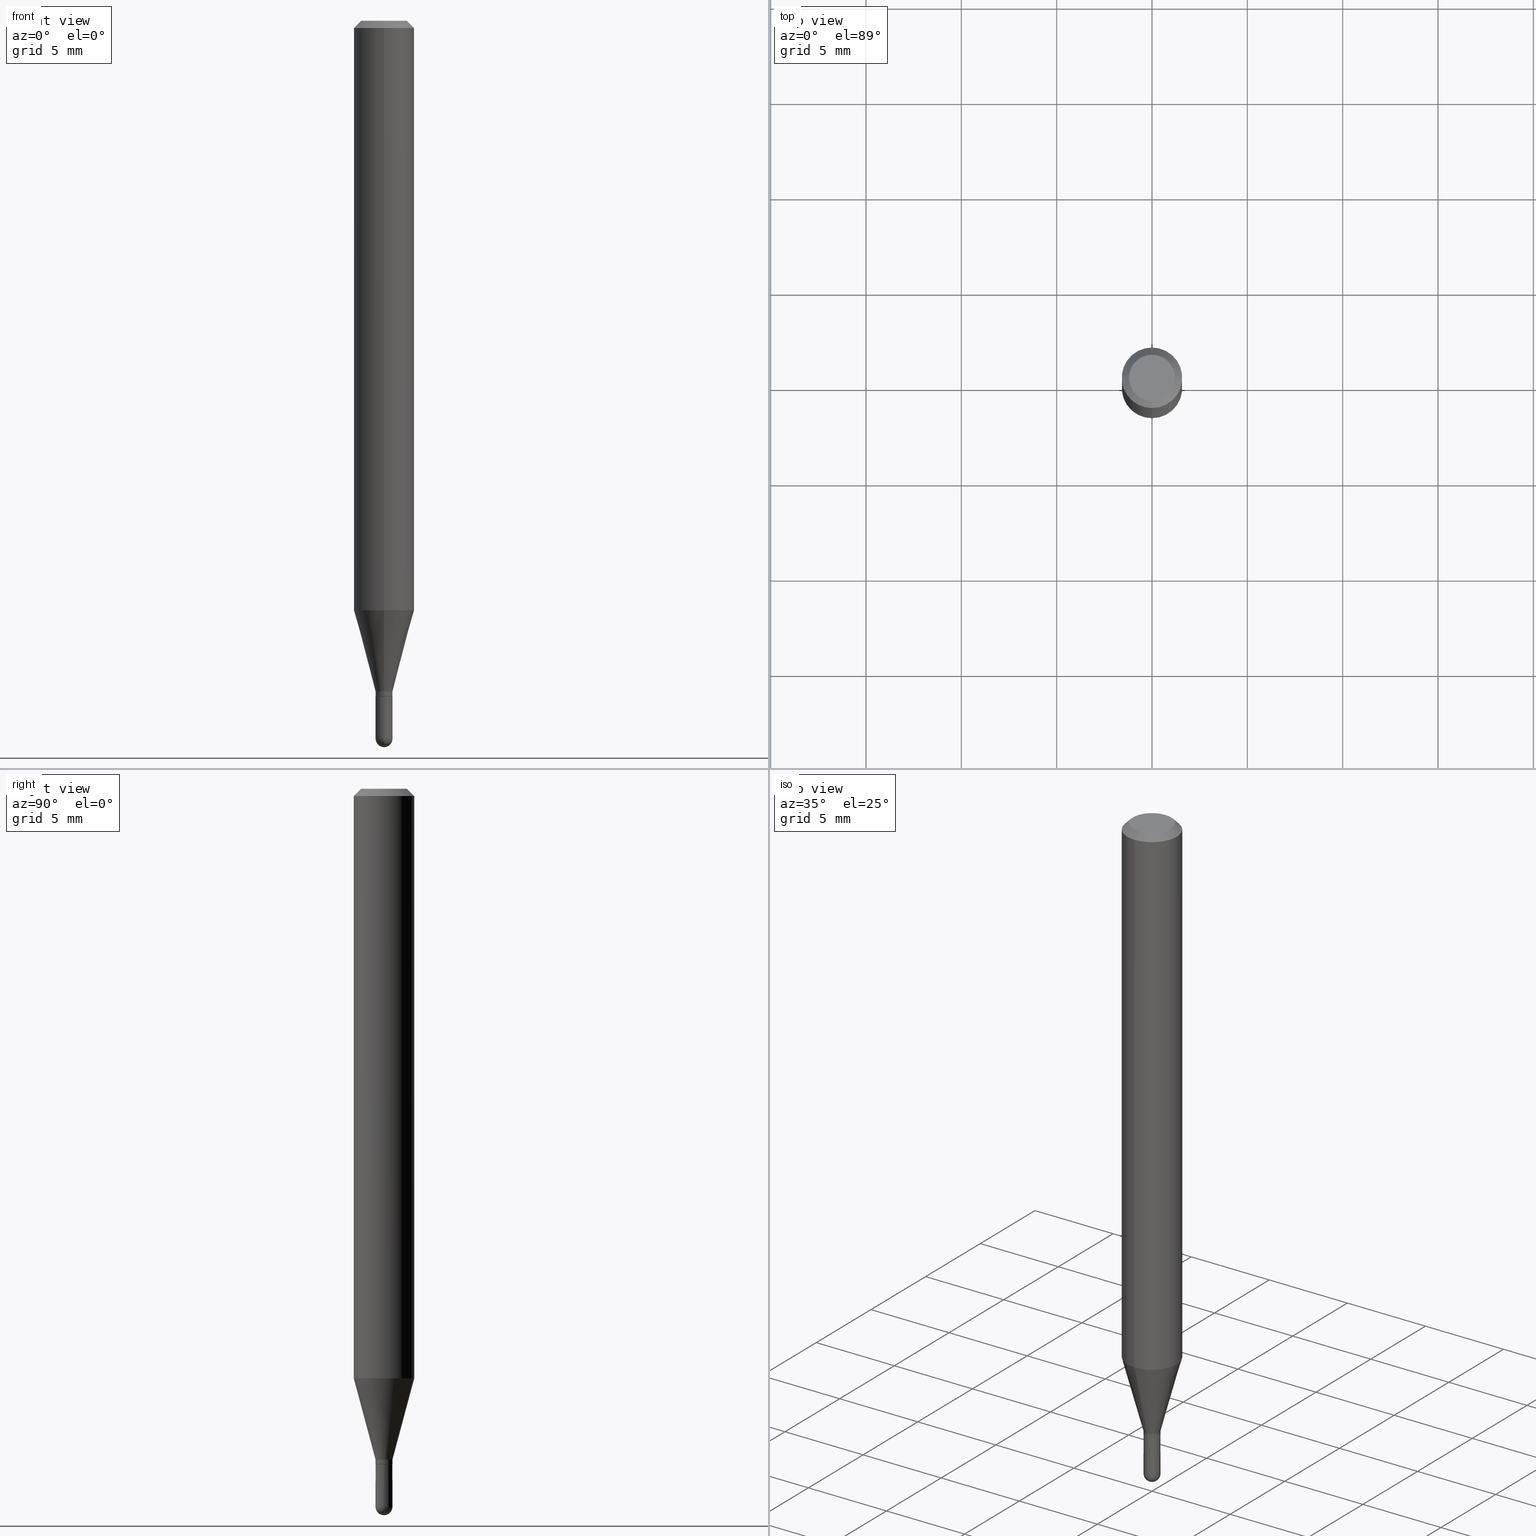
[diagram: canonical four-view strip — front | top / right | iso, engineering-drawing reading convention]
A machine part, canonical four-view strip (front | top / right | iso — engineering-drawing reading convention). The complete STEP part file that produces these views, byte-faithful:
ISO-10303-21;
HEADER;
FILE_DESCRIPTION (( 'STEP AP203' ),
    '1' );
FILE_NAME ('03133.STEP',
    '2024-03-08T18:18:30',
    ( '' ),
    ( '' ),
    'SwSTEP 2.0',
    'SolidWorks 2023',
    '' );
FILE_SCHEMA (( 'CONFIG_CONTROL_DESIGN' ));
ENDSEC;

DATA;
#1 = DIRECTION ( 'NONE',  ( 5.024295867788190974E-15, 0.7071067811865681119, 0.7071067811865270336 ) ) ;
#2 = DIRECTION ( 'NONE',  ( 2.445470767023834955E-29, -3.491478530810524954E-15, -1.000000000000000000 ) ) ;
#3 = AXIS2_PLACEMENT_3D ( 'NONE', #217, #303, #488 ) ;
#4 = LINE ( 'NONE', #283, #213 ) ;
#5 = DIRECTION ( 'NONE',  ( 1.000000000000000000, -7.105427357601001070E-15, 4.926315508542082329E-29 ) ) ;
#6 = EDGE_LOOP ( 'NONE', ( #229, #171, #78, #389, #225 ) ) ;
#7 = DIRECTION ( 'NONE',  ( -2.445470767023835515E-29, 3.491478530810524954E-15, 1.000000000000000000 ) ) ;
#8 = ADVANCED_FACE ( 'NONE', ( #65 ), #86, .T. ) ;
#9 = CARTESIAN_POINT ( 'NONE',  ( -0.01750000000000000167, -4.899023797502559247E-15, -1.395000000000000018 ) ) ;
#10 = DIRECTION ( 'NONE',  ( 1.000000000000000000, -6.982962677686265922E-15, 4.883557194083112901E-29 ) ) ;
#11 = DIRECTION ( 'NONE',  ( -2.445470767023835515E-29, 3.491478530810524954E-15, 1.000000000000000000 ) ) ;
#12 = APPROVAL_DATE_TIME ( #56, #386 ) ;
#13 = AXIS2_PLACEMENT_3D ( 'NONE', #139, #341, #422 ) ;
#14 = CIRCLE ( 'NONE', #177, 0.01750000000000000167 ) ;
#15 = APPROVAL_STATUS ( 'not_yet_approved' ) ;
#16 = ADVANCED_FACE ( 'NONE', ( #413 ), #321, .T. ) ;
#17 = APPROVAL_ROLE ( '' ) ;
#18 = EDGE_LOOP ( 'NONE', ( #401, #287, #233, #82 ) ) ;
#19 = DIRECTION ( 'NONE',  ( -2.445468806185136597E-29, 3.491481338843145583E-15, 1.000000000000000000 ) ) ;
#20 = PERSON_AND_ORGANIZATION ( #118, #427 ) ;
#21 = DIRECTION ( 'NONE',  ( -6.982962677686265922E-15, -1.000000000000000000, 0.000000000000000000 ) ) ;
#22 = ORIENTED_EDGE ( 'NONE', *, *, #240, .F. ) ;
#23 = COORDINATED_UNIVERSAL_TIME_OFFSET ( 5, 0, .BEHIND. ) ;
#24 = DIRECTION ( 'NONE',  ( -1.000000000000000000, 6.982962677686265922E-15, -4.876176775795935793E-29 ) ) ;
#25 = ORIENTED_EDGE ( 'NONE', *, *, #52, .F. ) ;
#26 = CARTESIAN_POINT ( 'NONE',  ( 3.668206150535694734E-31, -5.237217796215704281E-17, -0.01499999999999976179 ) ) ;
#27 = ORIENTED_EDGE ( 'NONE', *, *, #466, .F. ) ;
#28 = DIRECTION ( 'NONE',  ( -2.445470767023835515E-29, 3.491478530810524954E-15, 1.000000000000000000 ) ) ;
#29 = AXIS2_PLACEMENT_3D ( 'NONE', #399, #11, #494 ) ;
#30 = AXIS2_PLACEMENT_3D ( 'NONE', #117, #284, #286 ) ;
#31 = EDGE_CURVE ( 'NONE', #374, #159, #192, .T. ) ;
#32 = EDGE_CURVE ( 'NONE', #159, #374, #44, .T. ) ;
#33 = CONICAL_SURFACE ( 'NONE', #460, 0.01700000000000000122, 0.7853981633974739252 ) ;
#34 = DIRECTION ( 'NONE',  ( -2.445470767023835515E-29, 3.491478530810524954E-15, 1.000000000000000000 ) ) ;
#35 = CIRCLE ( 'NONE', #467, 0.01749999999999987330 ) ;
#36 = DIRECTION ( 'NONE',  ( 1.000000000000000000, -6.982962677686248567E-15, 0.000000000000000000 ) ) ;
#37 = DIRECTION ( 'NONE',  ( -2.445470767023835515E-29, 3.491478530810524954E-15, 1.000000000000000000 ) ) ;
#38 = CARTESIAN_POINT ( 'NONE',  ( -4.364351673553916201E-16, -0.06250000000000000000, 2.182174081756577850E-16 ) ) ;
#39 = ORIENTED_EDGE ( 'NONE', *, *, #116, .F. ) ;
#40 = DIRECTION ( 'NONE',  ( -2.445468806185136597E-29, 3.491481338843145583E-15, 1.000000000000000000 ) ) ;
#41 = CYLINDRICAL_SURFACE ( 'NONE', #400, 0.01749999999999992534 ) ;
#42 = CARTESIAN_POINT ( 'NONE',  ( 3.411428984628265351E-29, -4.870616467686188228E-15, -1.395000000000000018 ) ) ;
#43 = DIRECTION ( 'NONE',  ( -2.445470767023835515E-29, 3.491478530810524954E-15, 1.000000000000000000 ) ) ;
#44 = CIRCLE ( 'NONE', #144, 0.06250000000000000000 ) ;
#45 = ORIENTED_EDGE ( 'NONE', *, *, #455, .T. ) ;
#46 = CARTESIAN_POINT ( 'NONE',  ( 2.976279060534930042E-29, -4.249330877999140897E-15, -1.217057713659400742 ) ) ;
#47 = CC_DESIGN_APPROVAL ( #100, ( #178 ) ) ;
#48 = EDGE_CURVE ( 'NONE', #273, #83, #58, .T. ) ;
#49 = ORIENTED_EDGE ( 'NONE', *, *, #156, .F. ) ;
#50 = ORIENTED_EDGE ( 'NONE', *, *, #334, .F. ) ;
#51 = ORIENTED_EDGE ( 'NONE', *, *, #480, .F. ) ;
#52 = EDGE_CURVE ( 'NONE', #412, #210, #445, .T. ) ;
#53 = COORDINATED_UNIVERSAL_TIME_OFFSET ( 5, 0, .BEHIND. ) ;
#54 = CYLINDRICAL_SURFACE ( 'NONE', #434, 0.06250000000000000000 ) ;
#55 = EDGE_CURVE ( 'NONE', #345, #315, #198, .T. ) ;
#56 = DATE_AND_TIME ( #365, #381 ) ;
#57 = ORIENTED_EDGE ( 'NONE', *, *, #156, .T. ) ;
#58 = CIRCLE ( 'NONE', #123, 0.01750000000000000167 ) ;
#59 = CARTESIAN_POINT ( 'NONE',  ( 3.623910964163401181E-29, -5.178264216733472029E-15, -1.482500000000000151 ) ) ;
#60 = AXIS2_PLACEMENT_3D ( 'NONE', #250, #324, #328 ) ;
#61 = APPROVAL_ROLE ( '' ) ;
#62 = SECURITY_CLASSIFICATION_LEVEL ( 'unclassified' ) ;
#63 = DIRECTION ( 'NONE',  ( 1.000000000000000000, -6.982962677686265922E-15, 4.883557194083112901E-29 ) ) ;
#64 = VERTEX_POINT ( 'NONE', #420 ) ;
#65 = FACE_OUTER_BOUND ( 'NONE', #261, .T. ) ;
#66 = AXIS2_PLACEMENT_3D ( 'NONE', #196, #246, #113 ) ;
#67 = ORIENTED_EDGE ( 'NONE', *, *, #275, .F. ) ;
#68 = EDGE_CURVE ( 'NONE', #296, #253, #426, .T. ) ;
#69 = DIRECTION ( 'NONE',  ( 2.438088387897960049E-29, -3.491481338843145188E-15, -1.000000000000000000 ) ) ;
#70 = CC_DESIGN_PERSON_AND_ORGANIZATION_ASSIGNMENT ( #336, #255, ( #373 ) ) ;
#71 = EDGE_LOOP ( 'NONE', ( #248, #504, #340, #107 ) ) ;
#72 = CYLINDRICAL_SURFACE ( 'NONE', #368, 0.01749999999999992534 ) ;
#73 = ADVANCED_FACE ( 'NONE', ( #452 ), #457, .T. ) ;
#74 = LINE ( 'NONE', #238, #369 ) ;
#75 = AXIS2_PLACEMENT_3D ( 'NONE', #423, #10, #158 ) ;
#76 = CARTESIAN_POINT ( 'NONE',  ( -1.222018468594729558E-16, -0.01750000000000511563, -1.482500000000000373 ) ) ;
#77 = AXIS2_PLACEMENT_3D ( 'NONE', #484, #19, #407 ) ;
#78 = ORIENTED_EDGE ( 'NONE', *, *, #278, .T. ) ;
#79 = CARTESIAN_POINT ( 'NONE',  ( -5.856621485467640088E-45, 8.361689886188936575E-31, 2.394885093063374429E-16 ) ) ;
#80 = LINE ( 'NONE', #38, #281 ) ;
#81 = ADVANCED_FACE ( 'NONE', ( #449 ), #54, .T. ) ;
#82 = ORIENTED_EDGE ( 'NONE', *, *, #459, .F. ) ;
#83 = VERTEX_POINT ( 'NONE', #222 ) ;
#84 = DIRECTION ( 'NONE',  ( 4.937700262164548042E-15, 0.7071067811865451302, -0.7071067811865499042 ) ) ;
#85 = ADVANCED_FACE ( 'NONE', ( #182 ), #343, .T. ) ;
#86 = CONICAL_SURFACE ( 'NONE', #145, 0.01749999999999992534, 0.2617993877991502960 ) ;
#87 = EDGE_LOOP ( 'NONE', ( #67, #187 ) ) ;
#88 = CARTESIAN_POINT ( 'NONE',  ( 1.243449787580533389E-16, 0.01749999999999475933, -1.482500000000000373 ) ) ;
#89 = CIRCLE ( 'NONE', #509, 0.01749999999999992534 ) ;
#90 = CALENDAR_DATE ( 2024, 8, 3 ) ;
#91 = ORIENTED_EDGE ( 'NONE', *, *, #55, .T. ) ;
#92 = EDGE_CURVE ( 'NONE', #315, #210, #487, .T. ) ;
#93 = LINE ( 'NONE', #288, #194 ) ;
#94 = PERSON_AND_ORGANIZATION ( #118, #427 ) ;
#95 = ORIENTED_EDGE ( 'NONE', *, *, #164, .T. ) ;
#96 = COORDINATED_UNIVERSAL_TIME_OFFSET ( 5, 0, .BEHIND. ) ;
#97 = ORIENTED_EDGE ( 'NONE', *, *, #278, .F. ) ;
#98 = DIRECTION ( 'NONE',  ( -2.445470767023835515E-29, 3.491478530810524954E-15, 1.000000000000000000 ) ) ;
#99 = VERTEX_POINT ( 'NONE', #297 ) ;
#100 = APPROVAL ( #490, 'UNSPECIFIED' ) ;
#101 = CIRCLE ( 'NONE', #392, 0.01749999999999992534 ) ;
#102 = DIRECTION ( 'NONE',  ( -2.445470767023835515E-29, 3.491478530810524954E-15, 1.000000000000000000 ) ) ;
#103 = CC_DESIGN_PERSON_AND_ORGANIZATION_ASSIGNMENT ( #264, #408, ( #178 ) ) ;
#104 = ORIENTED_EDGE ( 'NONE', *, *, #197, .F. ) ;
#105 = DIRECTION ( 'NONE',  ( -2.445470767023835515E-29, 3.491478530810524954E-15, 1.000000000000000000 ) ) ;
#106 = AXIS2_PLACEMENT_3D ( 'NONE', #510, #122, #472 ) ;
#107 = ORIENTED_EDGE ( 'NONE', *, *, #305, .F. ) ;
#108 = MANIFOLD_SOLID_BREP ( 'Body-Move/Copy2[2]', #473 ) ;
#109 = FACE_OUTER_BOUND ( 'NONE', #375, .T. ) ;
#110 = MANIFOLD_SOLID_BREP ( 'Body-Move/Copy2[1]', #259 ) ;
#111 = LINE ( 'NONE', #355, #358 ) ;
#112 = VECTOR ( 'NONE', #136, 39.37007874015748143 ) ;
#113 = DIRECTION ( 'NONE',  ( -6.982962677686265922E-15, -1.000000000000000000, 3.491478530810524954E-15 ) ) ;
#114 = AXIS2_PLACEMENT_3D ( 'NONE', #42, #40, #153 ) ;
#115 = DIRECTION ( 'NONE',  ( -2.445468806185136877E-29, 3.491481338843145188E-15, 1.000000000000000000 ) ) ;
#116 = EDGE_CURVE ( 'NONE', #253, #159, #175, .T. ) ;
#117 = CARTESIAN_POINT ( 'NONE',  ( 0.000000000000000000, 0.000000000000000000, 0.000000000000000000 ) ) ;
#118 = PERSON ( 'UNSPECIFIED', 'UNSPECIFIED', 'UNSPECIFIED', ('UNSPECIFIED'), ('UNSPECIFIED'), ('UNSPECIFIED') ) ;
#119 = CARTESIAN_POINT ( 'NONE',  ( -1.187103655206324139E-16, -0.01700000000000487232, -1.395000000000000018 ) ) ;
#120 = DIRECTION ( 'NONE',  ( -6.982962677686266711E-15, -1.000000000000000000, 3.491478530810524560E-15 ) ) ;
#121 = VERTEX_POINT ( 'NONE', #425 ) ;
#122 = DIRECTION ( 'NONE',  ( -2.445470767023835515E-29, 3.491478530810524954E-15, 1.000000000000000000 ) ) ;
#123 = AXIS2_PLACEMENT_3D ( 'NONE', #186, #499, #364 ) ;
#124 = AXIS2_PLACEMENT_3D ( 'NONE', #362, #2, #352 ) ;
#125 = ORIENTED_EDGE ( 'NONE', *, *, #466, .T. ) ;
#126 = EDGE_CURVE ( 'NONE', #468, #345, #379, .T. ) ;
#127 = LOCAL_TIME ( 13, 18, 30.00000000000000000, #497 ) ;
#128 = EDGE_LOOP ( 'NONE', ( #453, #377, #478, #214 ) ) ;
#129 = DATE_TIME_ROLE ( 'creation_date' ) ;
#130 = ORIENTED_EDGE ( 'NONE', *, *, #378, .T. ) ;
#131 =( NAMED_UNIT ( * ) SI_UNIT ( $, .STERADIAN. ) SOLID_ANGLE_UNIT ( ) );
#132 = EDGE_LOOP ( 'NONE', ( #451, #125 ) ) ;
#133 = DIRECTION ( 'NONE',  ( -6.982962677686265922E-15, -1.000000000000000000, 3.483106191921935554E-15 ) ) ;
#134 = CIRCLE ( 'NONE', #461, 0.01749999999999992534 ) ;
#135 = PRODUCT_DEFINITION_FORMATION_WITH_SPECIFIED_SOURCE ( 'ANY', '', #373, .NOT_KNOWN. ) ;
#136 = DIRECTION ( 'NONE',  ( -4.851104656540964275E-15, -0.7071067811865500152, -0.7071067811865450192 ) ) ;
#137 = CARTESIAN_POINT ( 'NONE',  ( 4.440892098500920998E-16, 0.06249999999999572564, -1.217057713659400964 ) ) ;
#138 = DIRECTION ( 'NONE',  ( -2.445470767023835515E-29, 3.491478530810524954E-15, 1.000000000000000000 ) ) ;
#139 = CARTESIAN_POINT ( 'NONE',  ( 3.411431719998250499E-29, -4.870612550480682147E-15, -1.395000000000000018 ) ) ;
#140 = ADVANCED_FACE ( 'NONE', ( #431 ), #33, .T. ) ;
#141 = DIRECTION ( 'NONE',  ( -6.982962677686265133E-15, -1.000000000000000000, 3.491478530810524954E-15 ) ) ;
#142 = AXIS2_PLACEMENT_3D ( 'NONE', #268, #306, #421 ) ;
#143 = CARTESIAN_POINT ( 'NONE',  ( 3.386977012328011606E-29, -4.835697765172575624E-15, -1.384999999999999787 ) ) ;
#144 = AXIS2_PLACEMENT_3D ( 'NONE', #26, #183, #348 ) ;
#145 = AXIS2_PLACEMENT_3D ( 'NONE', #226, #496, #262 ) ;
#146 = CIRCLE ( 'NONE', #239, 0.01700000000000000122 ) ;
#147 = ADVANCED_FACE ( 'NONE', ( #189 ), #72, .T. ) ;
#148 = APPROVAL_PERSON_ORGANIZATION ( #20, #230, #220 ) ;
#149 = LENGTH_MEASURE_WITH_UNIT ( LENGTH_MEASURE( 0.02539999999999999897 ), #205 );
#150 = CC_DESIGN_DATE_AND_TIME_ASSIGNMENT ( #347, #129, ( #178 ) ) ;
#151 = DIRECTION ( 'NONE',  ( 1.000000000000000000, -6.982962677686248567E-15, 0.000000000000000000 ) ) ;
#152 = ADVANCED_FACE ( 'NONE', ( #385 ), #500, .T. ) ;
#153 = DIRECTION ( 'NONE',  ( 1.000000000000000000, -6.982962677686248567E-15, 0.000000000000000000 ) ) ;
#154 = CARTESIAN_POINT ( 'NONE',  ( 3.623910964163401181E-29, -5.178264216733472029E-15, -1.482500000000000151 ) ) ;
#155 = CIRCLE ( 'NONE', #77, 0.01750000000000000167 ) ;
#156 = EDGE_CURVE ( 'NONE', #121, #273, #232, .T. ) ;
#157 = LINE ( 'NONE', #393, #351 ) ;
#158 = DIRECTION ( 'NONE',  ( -6.982962677686265922E-15, -1.000000000000000000, 0.000000000000000000 ) ) ;
#159 = VERTEX_POINT ( 'NONE', #367 ) ;
#160 = ORIENTED_EDGE ( 'NONE', *, *, #313, .F. ) ;
#161 = DIRECTION ( 'NONE',  ( -6.982962677686265133E-15, -1.000000000000000000, 0.000000000000000000 ) ) ;
#162 = ORIENTED_EDGE ( 'NONE', *, *, #275, .T. ) ;
#163 = COORDINATED_UNIVERSAL_TIME_OFFSET ( 5, 0, .BEHIND. ) ;
#164 = EDGE_CURVE ( 'NONE', #99, #345, #111, .T. ) ;
#165 = VECTOR ( 'NONE', #309, 39.37007874015748143 ) ;
#166 = CIRCLE ( 'NONE', #331, 0.04749999999999999362 ) ;
#167 = DIRECTION ( 'NONE',  ( -2.445468806185136877E-29, 3.491481338843145188E-15, 1.000000000000000000 ) ) ;
#168 = PLANE ( 'NONE',  #66 ) ;
#169 = DIRECTION ( 'NONE',  ( 6.982962677686265922E-15, 1.000000000000000000, -3.483106191921935554E-15 ) ) ;
#170 = CALENDAR_DATE ( 2024, 8, 3 ) ;
#171 = ORIENTED_EDGE ( 'NONE', *, *, #416, .T. ) ;
#172 = EDGE_CURVE ( 'NONE', #428, #257, #483, .T. ) ;
#173 = CALENDAR_DATE ( 2024, 8, 3 ) ;
#174 = ORIENTED_EDGE ( 'NONE', *, *, #305, .T. ) ;
#175 = LINE ( 'NONE', #346, #112 ) ;
#176 = ORIENTED_EDGE ( 'NONE', *, *, #92, .F. ) ;
#177 = AXIS2_PLACEMENT_3D ( 'NONE', #282, #432, #151 ) ;
#178 = PRODUCT_DEFINITION ( 'UNKNOWN', '', #135, #242 ) ;
#179 = CALENDAR_DATE ( 2024, 8, 3 ) ;
#180 = FACE_OUTER_BOUND ( 'NONE', #6, .T. ) ;
#181 = DIMENSIONAL_EXPONENTS ( 1.000000000000000000, 0.000000000000000000, 0.000000000000000000, 0.000000000000000000, 0.000000000000000000, 0.000000000000000000, 0.000000000000000000 ) ;
#182 = FACE_OUTER_BOUND ( 'NONE', #471, .T. ) ;
#183 = DIRECTION ( 'NONE',  ( -2.445470767023835515E-29, 3.491478530810524954E-15, 1.000000000000000000 ) ) ;
#184 = ADVANCED_FACE ( 'NONE', ( #320 ), #204, .T. ) ;
#185 = VERTEX_POINT ( 'NONE', #470 ) ;
#186 = CARTESIAN_POINT ( 'NONE',  ( 3.625407505169465812E-29, -5.176121084834964763E-15, -1.482500000000000373 ) ) ;
#187 = ORIENTED_EDGE ( 'NONE', *, *, #511, .F. ) ;
#188 = CIRCLE ( 'NONE', #269, 0.06250000000000000000 ) ;
#189 = FACE_OUTER_BOUND ( 'NONE', #71, .T. ) ;
#190 = CARTESIAN_POINT ( 'NONE',  ( 3.665958397768608510E-29, -5.240436706112481047E-15, -1.499999999999999778 ) ) ;
#191 = CARTESIAN_POINT ( 'NONE',  ( 3.386977012328011606E-29, -4.835697765172575624E-15, -1.384999999999999787 ) ) ;
#192 = CIRCLE ( 'NONE', #249, 0.06250000000000000000 ) ;
#193 = EDGE_CURVE ( 'NONE', #83, #428, #202, .T. ) ;
#194 = VECTOR ( 'NONE', #167, 39.37007874015748143 ) ;
#195 = LINE ( 'NONE', #465, #508 ) ;
#196 = CARTESIAN_POINT ( 'NONE',  ( 3.411431719998250499E-29, -4.870612550480682147E-15, -1.395000000000000018 ) ) ;
#197 = EDGE_CURVE ( 'NONE', #210, #374, #4, .T. ) ;
#198 = LINE ( 'NONE', #237, #165 ) ;
#199 = FACE_OUTER_BOUND ( 'NONE', #87, .T. ) ;
#200 = DIRECTION ( 'NONE',  ( -2.445470767023835515E-29, 3.491478530810524954E-15, 1.000000000000000000 ) ) ;
#201 = ADVANCED_FACE ( 'NONE', ( #245 ), #396, .F. ) ;
#202 = LINE ( 'NONE', #280, #227 ) ;
#203 = DIRECTION ( 'NONE',  ( -1.807323732225330534E-15, -0.2588190451025182415, 0.9659258262890689783 ) ) ;
#204 = CONICAL_SURFACE ( 'NONE', #436, 0.06250000000000000000, 0.7853981633974483900 ) ;
#205 =( LENGTH_UNIT ( ) NAMED_UNIT ( * ) SI_UNIT ( $, .METRE. ) );
#206 = ORIENTED_EDGE ( 'NONE', *, *, #416, .F. ) ;
#207 = CARTESIAN_POINT ( 'NONE',  ( 3.411431719998250499E-29, -4.870612550480682147E-15, -1.395000000000000018 ) ) ;
#208 = DATE_AND_TIME ( #173, #215 ) ;
#209 = ORIENTED_EDGE ( 'NONE', *, *, #31, .F. ) ;
#210 = VERTEX_POINT ( 'NONE', #137 ) ;
#211 = APPROVAL_DATE_TIME ( #339, #100 ) ;
#212 = VECTOR ( 'NONE', #293, 39.37007874015748143 ) ;
#213 = VECTOR ( 'NONE', #438, 39.37007874015748143 ) ;
#214 = ORIENTED_EDGE ( 'NONE', *, *, #228, .F. ) ;
#215 = LOCAL_TIME ( 13, 18, 30.00000000000000000, #53 ) ;
#216 = CARTESIAN_POINT ( 'NONE',  ( 1.243449787580508491E-16, 0.01749999999999508893, -1.384999999999999787 ) ) ;
#217 = CARTESIAN_POINT ( 'NONE',  ( 0.000000000000000000, 0.000000000000000000, 0.000000000000000000 ) ) ;
#218 = ADVANCED_FACE ( 'NONE', ( #180 ), #458, .T. ) ;
#219 = ORIENTED_EDGE ( 'NONE', *, *, #378, .F. ) ;
#220 = APPROVAL_ROLE ( '' ) ;
#221 = CARTESIAN_POINT ( 'NONE',  ( 0.01750000000000000167, -4.992818314545698211E-15, -1.395000000000000018 ) ) ;
#222 = CARTESIAN_POINT ( 'NONE',  ( -0.01750000000000000167, -4.899023797502559247E-15, -1.482500000000000373 ) ) ;
#223 = APPLICATION_PROTOCOL_DEFINITION ( 'international standard', 'config_control_design', 1994, #424 ) ;
#224 = CIRCLE ( 'NONE', #344, 0.01750000000000000167 ) ;
#225 = ORIENTED_EDGE ( 'NONE', *, *, #172, .F. ) ;
#226 = CARTESIAN_POINT ( 'NONE',  ( 3.386977012328011606E-29, -4.835697765172575624E-15, -1.384999999999999787 ) ) ;
#227 = VECTOR ( 'NONE', #115, 39.37007874015748143 ) ;
#228 = EDGE_CURVE ( 'NONE', #345, #468, #89, .T. ) ;
#229 = ORIENTED_EDGE ( 'NONE', *, *, #193, .F. ) ;
#230 = APPROVAL ( #411, 'UNSPECIFIED' ) ;
#231 = DIRECTION ( 'NONE',  ( -2.445470767023835515E-29, 3.491478530810524954E-15, 1.000000000000000000 ) ) ;
#232 = CIRCLE ( 'NONE', #300, 0.01750000000000000167 ) ;
#233 = ORIENTED_EDGE ( 'NONE', *, *, #32, .F. ) ;
#234 = DIRECTION ( 'NONE',  ( -6.982962677686265133E-15, -1.000000000000000000, 0.000000000000000000 ) ) ;
#235 = CARTESIAN_POINT ( 'NONE',  ( 1.243449787580506765E-16, 0.01749999999999499872, -1.394500000000000073 ) ) ;
#236 = ORIENTED_EDGE ( 'NONE', *, *, #48, .F. ) ;
#237 = CARTESIAN_POINT ( 'NONE',  ( 1.243449787580169774E-16, 0.01749999999999992534, -6.110087428918392638E-17 ) ) ;
#238 = CARTESIAN_POINT ( 'NONE',  ( -1.222018468594752731E-16, -0.01750000000000476175, -1.384999999999999787 ) ) ;
#239 = AXIS2_PLACEMENT_3D ( 'NONE', #207, #37, #316 ) ;
#240 = EDGE_CURVE ( 'NONE', #121, #257, #93, .T. ) ;
#241 = DIRECTION ( 'NONE',  ( -2.445470767023835515E-29, 3.491478530810524954E-15, 1.000000000000000000 ) ) ;
#242 = DESIGN_CONTEXT ( 'detailed design', #424, 'design' ) ;
#243 = CARTESIAN_POINT ( 'NONE',  ( 3.668206150535694734E-31, -5.237217796215704281E-17, -0.01499999999999976179 ) ) ;
#244 = CARTESIAN_POINT ( 'NONE',  ( -1.222018468594754457E-16, -0.01750000000000485542, -1.394500000000000073 ) ) ;
#245 = FACE_OUTER_BOUND ( 'NONE', #271, .T. ) ;
#246 = DIRECTION ( 'NONE',  ( -2.445470767023834955E-29, 3.491478530810524954E-15, 1.000000000000000000 ) ) ;
#247 = EDGE_LOOP ( 'NONE', ( #27, #329, #291, #219 ) ) ;
#248 = ORIENTED_EDGE ( 'NONE', *, *, #55, .F. ) ;
#249 = AXIS2_PLACEMENT_3D ( 'NONE', #492, #28, #133 ) ;
#250 = CARTESIAN_POINT ( 'NONE',  ( 0.000000000000000000, 0.000000000000000000, 0.000000000000000000 ) ) ;
#251 = AXIS2_PLACEMENT_3D ( 'NONE', #318, #437, #161 ) ;
#252 = ORIENTED_EDGE ( 'NONE', *, *, #294, .F. ) ;
#253 = VERTEX_POINT ( 'NONE', #270 ) ;
#254 = DIRECTION ( 'NONE',  ( 2.445470767023835515E-29, -3.491478530810524954E-15, -1.000000000000000000 ) ) ;
#255 = PERSON_AND_ORGANIZATION_ROLE ( 'design_owner' ) ;
#256 = DIRECTION ( 'NONE',  ( -2.445468806185136597E-29, 3.491481338843145583E-15, 1.000000000000000000 ) ) ;
#257 = VERTEX_POINT ( 'NONE', #221 ) ;
#258 = DATE_TIME_ROLE ( 'classification_date' ) ;
#259 = CLOSED_SHELL ( 'NONE', ( #505, #152, #201, #73, #218 ) ) ;
#260 = CIRCLE ( 'NONE', #322, 0.01700000000000000122 ) ;
#261 = EDGE_LOOP ( 'NONE', ( #464, #489, #25, #51 ) ) ;
#262 = DIRECTION ( 'NONE',  ( -6.982962677686265133E-15, -1.000000000000000000, 0.000000000000000000 ) ) ;
#263 = APPLICATION_CONTEXT ( 'configuration controlled 3d designs of mechanical parts and assemblies' ) ;
#264 = PERSON_AND_ORGANIZATION ( #118, #427 ) ;
#265 = DIRECTION ( 'NONE',  ( -6.982962677686266711E-15, -1.000000000000000000, 3.491478530810524560E-15 ) ) ;
#266 = EDGE_CURVE ( 'NONE', #210, #412, #188, .T. ) ;
#267 = ORIENTED_EDGE ( 'NONE', *, *, #48, .T. ) ;
#268 = CARTESIAN_POINT ( 'NONE',  ( 0.000000000000000000, 0.000000000000000000, 0.000000000000000000 ) ) ;
#269 = AXIS2_PLACEMENT_3D ( 'NONE', #46, #7, #444 ) ;
#270 = CARTESIAN_POINT ( 'NONE',  ( -3.773273898774340269E-16, -0.04749999999999999362, 4.053337395198373655E-16 ) ) ;
#271 = EDGE_LOOP ( 'NONE', ( #360, #384 ) ) ;
#272 = DIRECTION ( 'NONE',  ( -6.982962677686266711E-15, -1.000000000000000000, 0.000000000000000000 ) ) ;
#273 = VERTEX_POINT ( 'NONE', #88 ) ;
#274 = ADVANCED_BREP_SHAPE_REPRESENTATION ( '03133', ( #110, #108, #3 ), #454 ) ;
#275 = EDGE_CURVE ( 'NONE', #185, #99, #146, .T. ) ;
#276 = LOCAL_TIME ( 13, 18, 30.00000000000000000, #23 ) ;
#277 = DIRECTION ( 'NONE',  ( -6.982962677686265922E-15, -1.000000000000000000, 0.000000000000000000 ) ) ;
#278 = EDGE_CURVE ( 'NONE', #419, #121, #224, .T. ) ;
#279 =( CONVERSION_BASED_UNIT ( 'INCH', #149 ) LENGTH_UNIT ( ) NAMED_UNIT ( #181 ) );
#280 = CARTESIAN_POINT ( 'NONE',  ( -0.01750000000000000167, 1.243449787580175444E-16, -8.608136407946085539E-31 ) ) ;
#281 = VECTOR ( 'NONE', #241, 39.37007874015748143 ) ;
#282 = CARTESIAN_POINT ( 'NONE',  ( 3.625407505169465812E-29, -5.176121084834964763E-15, -1.482500000000000373 ) ) ;
#283 = CARTESIAN_POINT ( 'NONE',  ( 4.440892098500625669E-16, 0.06250000000000000000, -2.182174081756577850E-16 ) ) ;
#284 = DIRECTION ( 'NONE',  ( -2.445468806185136597E-29, 3.491481338843145583E-15, 1.000000000000000000 ) ) ;
#285 = EDGE_LOOP ( 'NONE', ( #176, #174, #486, #409 ) ) ;
#286 = DIRECTION ( 'NONE',  ( 1.000000000000000000, -6.982962677686265922E-15, 4.876176775795936353E-29 ) ) ;
#287 = ORIENTED_EDGE ( 'NONE', *, *, #197, .T. ) ;
#288 = CARTESIAN_POINT ( 'NONE',  ( 0.01750000000000000167, -1.222018468595096625E-16, 8.533309357642889039E-31 ) ) ;
#289 = AXIS2_PLACEMENT_3D ( 'NONE', #429, #69, #24 ) ;
#290 = APPROVAL_DATE_TIME ( #292, #230 ) ;
#291 = ORIENTED_EDGE ( 'NONE', *, *, #32, .T. ) ;
#292 = DATE_AND_TIME ( #90, #127 ) ;
#293 = DIRECTION ( 'NONE',  ( 1.839019923739600710E-15, 0.2588190451025250138, 0.9659258262890670910 ) ) ;
#294 = EDGE_CURVE ( 'NONE', #468, #64, #195, .T. ) ;
#295 = PERSON_AND_ORGANIZATION_ROLE ( 'classification_officer' ) ;
#296 = VERTEX_POINT ( 'NONE', #310 ) ;
#297 = CARTESIAN_POINT ( 'NONE',  ( 1.225686219186511394E-16, 0.01699999999999513012, -1.395000000000000018 ) ) ;
#298 = CC_DESIGN_PERSON_AND_ORGANIZATION_ASSIGNMENT ( #299, #415, ( #135 ) ) ;
#299 = PERSON_AND_ORGANIZATION ( #118, #427 ) ;
#300 = AXIS2_PLACEMENT_3D ( 'NONE', #349, #256, #450 ) ;
#301 = CARTESIAN_POINT ( 'NONE',  ( -5.856621485467640088E-45, 8.361689886188936575E-31, 2.394885093063374429E-16 ) ) ;
#302 = PRODUCT_DEFINITION_SHAPE ( 'NONE', 'NONE',  #178 ) ;
#303 = DIRECTION ( 'NONE',  ( 0.000000000000000000, 0.000000000000000000, 1.000000000000000000 ) ) ;
#304 = DIRECTION ( 'NONE',  ( -2.445470767023835515E-29, 3.491478530810524954E-15, 1.000000000000000000 ) ) ;
#305 = EDGE_CURVE ( 'NONE', #315, #64, #101, .T. ) ;
#306 = DIRECTION ( 'NONE',  ( -2.445468806185136597E-29, 3.491481338843145583E-15, 1.000000000000000000 ) ) ;
#307 = AXIS2_PLACEMENT_3D ( 'NONE', #350, #231, #311 ) ;
#308 = ORIENTED_EDGE ( 'NONE', *, *, #325, .F. ) ;
#309 = DIRECTION ( 'NONE',  ( -2.445470767023835515E-29, 3.491478530810524954E-15, 1.000000000000000000 ) ) ;
#310 = CARTESIAN_POINT ( 'NONE',  ( 3.840629472727447874E-16, 0.04749999999999999362, 7.364327909283752044E-17 ) ) ;
#311 = DIRECTION ( 'NONE',  ( -6.982962677686266711E-15, -1.000000000000000000, 0.000000000000000000 ) ) ;
#312 = VECTOR ( 'NONE', #388, 39.37007874015748143 ) ;
#313 = EDGE_CURVE ( 'NONE', #257, #428, #155, .T. ) ;
#314 = FACE_OUTER_BOUND ( 'NONE', #285, .T. ) ;
#315 = VERTEX_POINT ( 'NONE', #414 ) ;
#316 = DIRECTION ( 'NONE',  ( -6.982962677686265922E-15, -1.000000000000000000, 0.000000000000000000 ) ) ;
#317 = DIRECTION ( 'NONE',  ( 2.445470767023835515E-29, -3.491478530810524954E-15, -1.000000000000000000 ) ) ;
#318 = CARTESIAN_POINT ( 'NONE',  ( 3.623910964163401181E-29, -5.178264216733472029E-15, -1.482500000000000151 ) ) ;
#319 = VERTEX_POINT ( 'NONE', #190 ) ;
#320 = FACE_OUTER_BOUND ( 'NONE', #247, .T. ) ;
#321 = CONICAL_SURFACE ( 'NONE', #13, 0.01700000000000000122, 0.7853981633974739252 ) ;
#322 = AXIS2_PLACEMENT_3D ( 'NONE', #403, #34, #442 ) ;
#323 = APPROVAL_PERSON_ORGANIZATION ( #370, #386, #61 ) ;
#324 = DIRECTION ( 'NONE',  ( -2.445470767023835515E-29, 3.491478530810524954E-15, 1.000000000000000000 ) ) ;
#325 = EDGE_CURVE ( 'NONE', #64, #315, #134, .T. ) ;
#326 = CARTESIAN_POINT ( 'NONE',  ( 4.440892098500924943E-16, 0.06249999999999993755, -0.01499999999999997863 ) ) ;
#327 = ORIENTED_EDGE ( 'NONE', *, *, #430, .F. ) ;
#328 = DIRECTION ( 'NONE',  ( -6.982962677686265922E-15, -1.000000000000000000, 3.491478530810524560E-15 ) ) ;
#329 = ORIENTED_EDGE ( 'NONE', *, *, #116, .T. ) ;
#330 = EDGE_LOOP ( 'NONE', ( #104, #366, #337, #209 ) ) ;
#331 = AXIS2_PLACEMENT_3D ( 'NONE', #79, #43, #120 ) ;
#332 = PERSON_AND_ORGANIZATION_ROLE ( 'creator' ) ;
#333 = CC_DESIGN_APPROVAL ( #230, ( #135 ) ) ;
#334 = EDGE_CURVE ( 'NONE', #185, #468, #441, .T. ) ;
#335 = CARTESIAN_POINT ( 'NONE',  ( 3.668206150535694734E-31, -5.237217796215704281E-17, -0.01499999999999976179 ) ) ;
#336 = PERSON_AND_ORGANIZATION ( #118, #427 ) ;
#337 = ORIENTED_EDGE ( 'NONE', *, *, #459, .T. ) ;
#338 = DIRECTION ( 'NONE',  ( -6.982962677686265133E-15, -1.000000000000000000, 0.000000000000000000 ) ) ;
#339 = DATE_AND_TIME ( #170, #276 ) ;
#340 = ORIENTED_EDGE ( 'NONE', *, *, #294, .T. ) ;
#341 = DIRECTION ( 'NONE',  ( -2.445470767023835515E-29, 3.491478530810524954E-15, 1.000000000000000000 ) ) ;
#342 = SHAPE_DEFINITION_REPRESENTATION ( #302, #274 ) ;
#343 = CONICAL_SURFACE ( 'NONE', #482, 0.06250000000000000000, 0.7853981633974483900 ) ;
#344 = AXIS2_PLACEMENT_3D ( 'NONE', #354, #435, #36 ) ;
#345 = VERTEX_POINT ( 'NONE', #235 ) ;
#346 = CARTESIAN_POINT ( 'NONE',  ( -4.287811248607203282E-16, -0.06250000000000005551, -0.01499999999999954321 ) ) ;
#347 = DATE_AND_TIME ( #179, #446 ) ;
#348 = DIRECTION ( 'NONE',  ( -6.982962677686265922E-15, -1.000000000000000000, 3.483106191921935554E-15 ) ) ;
#349 = CARTESIAN_POINT ( 'NONE',  ( 3.625407505169465812E-29, -5.176121084834964763E-15, -1.482500000000000373 ) ) ;
#350 = CARTESIAN_POINT ( 'NONE',  ( 3.410208984614739227E-29, -4.868866811215277650E-15, -1.394500000000000073 ) ) ;
#351 = VECTOR ( 'NONE', #84, 39.37007874015748143 ) ;
#352 = DIRECTION ( 'NONE',  ( 6.982962677686265922E-15, 1.000000000000000000, -3.491478530810524954E-15 ) ) ;
#353 = UNCERTAINTY_MEASURE_WITH_UNIT (LENGTH_MEASURE( 1.000000000000000082E-05 ), #279, 'distance_accuracy_value', 'NONE');
#354 = CARTESIAN_POINT ( 'NONE',  ( 3.625407505169465812E-29, -5.176121084834964763E-15, -1.482500000000000373 ) ) ;
#355 = CARTESIAN_POINT ( 'NONE',  ( 1.207922650792511585E-16, 0.01699999999999513012, -1.395000000000000018 ) ) ;
#356 = PLANE ( 'NONE',  #124 ) ;
#357 = CARTESIAN_POINT ( 'NONE',  ( 0.000000000000000000, 0.000000000000000000, 0.000000000000000000 ) ) ;
#358 = VECTOR ( 'NONE', #1, 39.37007874015748143 ) ;
#359 = FACE_OUTER_BOUND ( 'NONE', #18, .T. ) ;
#360 = ORIENTED_EDGE ( 'NONE', *, *, #313, .T. ) ;
#361 = ADVANCED_FACE ( 'NONE', ( #199 ), #168, .F. ) ;
#362 = CARTESIAN_POINT ( 'NONE',  ( 3.316907271900976096E-16, 0.04749999999999999362, -4.610097556033120720E-17 ) ) ;
#363 = EDGE_LOOP ( 'NONE', ( #327, #45, #206, #236 ) ) ;
#364 = DIRECTION ( 'NONE',  ( 1.000000000000000000, -6.982962677686248567E-15, 0.000000000000000000 ) ) ;
#365 = CALENDAR_DATE ( 2024, 8, 3 ) ;
#366 = ORIENTED_EDGE ( 'NONE', *, *, #266, .T. ) ;
#367 = CARTESIAN_POINT ( 'NONE',  ( -4.364351673553912750E-16, -0.06250000000000005551, -0.01499999999999954321 ) ) ;
#368 = AXIS2_PLACEMENT_3D ( 'NONE', #357, #138, #141 ) ;
#369 = VECTOR ( 'NONE', #203, 39.37007874015748143 ) ;
#370 = PERSON_AND_ORGANIZATION ( #118, #427 ) ;
#371 = CC_DESIGN_APPROVAL ( #386, ( #485 ) ) ;
#372 = ORIENTED_EDGE ( 'NONE', *, *, #126, .F. ) ;
#373 = PRODUCT ( '03133', '03133', '', ( #456 ) ) ;
#374 = VERTEX_POINT ( 'NONE', #326 ) ;
#375 = EDGE_LOOP ( 'NONE', ( #267, #443, #160, #22, #57 ) ) ;
#376 = APPLICATION_PROTOCOL_DEFINITION ( 'international standard', 'config_control_design', 1994, #263 ) ;
#377 = ORIENTED_EDGE ( 'NONE', *, *, #511, .T. ) ;
#378 = EDGE_CURVE ( 'NONE', #296, #374, #157, .T. ) ;
#379 = CIRCLE ( 'NONE', #307, 0.01749999999999992534 ) ;
#380 = CONICAL_SURFACE ( 'NONE', #106, 0.01749999999999992534, 0.2617993877991502960 ) ;
#381 = LOCAL_TIME ( 13, 18, 30.00000000000000000, #163 ) ;
#382 = DIRECTION ( 'NONE',  ( -6.982962677686265922E-15, -1.000000000000000000, 3.491478530810524560E-15 ) ) ;
#383 = CC_DESIGN_PERSON_AND_ORGANIZATION_ASSIGNMENT ( #406, #295, ( #485 ) ) ;
#384 = ORIENTED_EDGE ( 'NONE', *, *, #172, .T. ) ;
#385 = FACE_OUTER_BOUND ( 'NONE', #439, .T. ) ;
#386 = APPROVAL ( #15, 'UNSPECIFIED' ) ;
#387 = CARTESIAN_POINT ( 'NONE',  ( 3.411431719998250499E-29, -4.870612550480682147E-15, -1.395000000000000018 ) ) ;
#388 = DIRECTION ( 'NONE',  ( -4.937700262164674260E-15, -0.7071067811865632269, 0.7071067811865319186 ) ) ;
#389 = ORIENTED_EDGE ( 'NONE', *, *, #240, .T. ) ;
#390 = ADVANCED_FACE ( 'NONE', ( #512 ), #356, .F. ) ;
#391 = CYLINDRICAL_SURFACE ( 'NONE', #60, 0.06250000000000000000 ) ;
#392 = AXIS2_PLACEMENT_3D ( 'NONE', #191, #304, #338 ) ;
#393 = CARTESIAN_POINT ( 'NONE',  ( 4.364351673553919652E-16, 0.06249999999999995143, -0.01499999999999997863 ) ) ;
#394 = EDGE_LOOP ( 'NONE', ( #162, #95, #372, #50 ) ) ;
#395 = FACE_OUTER_BOUND ( 'NONE', #440, .T. ) ;
#396 = PLANE ( 'NONE',  #289 ) ;
#397 = DIRECTION ( 'NONE',  ( 7.105427357601000281E-15, 1.000000000000000000, 0.000000000000000000 ) ) ;
#398 = ORIENTED_EDGE ( 'NONE', *, *, #430, .T. ) ;
#399 = CARTESIAN_POINT ( 'NONE',  ( 2.976279060534930042E-29, -4.249330877999140897E-15, -1.217057713659400742 ) ) ;
#400 = AXIS2_PLACEMENT_3D ( 'NONE', #469, #200, #479 ) ;
#401 = ORIENTED_EDGE ( 'NONE', *, *, #52, .T. ) ;
#402 = CC_DESIGN_SECURITY_CLASSIFICATION ( #485, ( #135 ) ) ;
#403 = CARTESIAN_POINT ( 'NONE',  ( 3.411431719998250499E-29, -4.870612550480682147E-15, -1.395000000000000018 ) ) ;
#404 = ORIENTED_EDGE ( 'NONE', *, *, #455, .F. ) ;
#405 = ADVANCED_FACE ( 'NONE', ( #314 ), #380, .T. ) ;
#406 = PERSON_AND_ORGANIZATION ( #118, #427 ) ;
#407 = DIRECTION ( 'NONE',  ( 1.000000000000000000, -6.982962677686248567E-15, 0.000000000000000000 ) ) ;
#408 = PERSON_AND_ORGANIZATION_ROLE ( 'creator' ) ;
#409 = ORIENTED_EDGE ( 'NONE', *, *, #266, .F. ) ;
#410 = DIRECTION ( 'NONE',  ( -2.445470767023835515E-29, 3.491478530810524954E-15, 1.000000000000000000 ) ) ;
#411 = APPROVAL_STATUS ( 'not_yet_approved' ) ;
#412 = VERTEX_POINT ( 'NONE', #477 ) ;
#413 = FACE_OUTER_BOUND ( 'NONE', #128, .T. ) ;
#414 = CARTESIAN_POINT ( 'NONE',  ( 2.842170943040716840E-16, 0.01749999999999508893, -1.384999999999999787 ) ) ;
#415 = PERSON_AND_ORGANIZATION_ROLE ( 'design_supplier' ) ;
#416 = EDGE_CURVE ( 'NONE', #83, #419, #14, .T. ) ;
#417 =( NAMED_UNIT ( * ) PLANE_ANGLE_UNIT ( ) SI_UNIT ( $, .RADIAN. ) );
#418 = CC_DESIGN_DATE_AND_TIME_ASSIGNMENT ( #208, #258, ( #485 ) ) ;
#419 = VERTEX_POINT ( 'NONE', #76 ) ;
#420 = CARTESIAN_POINT ( 'NONE',  ( -1.222018468594752731E-16, -0.01750000000000476175, -1.384999999999999787 ) ) ;
#421 = DIRECTION ( 'NONE',  ( 1.000000000000000000, -6.982962677686265922E-15, 4.876176775795936353E-29 ) ) ;
#422 = DIRECTION ( 'NONE',  ( -6.982962677686265922E-15, -1.000000000000000000, 0.000000000000000000 ) ) ;
#423 = CARTESIAN_POINT ( 'NONE',  ( 3.623910964163401181E-29, -5.178264216733472029E-15, -1.482500000000000151 ) ) ;
#424 = APPLICATION_CONTEXT ( 'configuration controlled 3d designs of mechanical parts and assemblies' ) ;
#425 = CARTESIAN_POINT ( 'NONE',  ( 0.01750000000000000167, -5.145570623120085689E-15, -1.482500000000000373 ) ) ;
#426 = CIRCLE ( 'NONE', #507, 0.04749999999999999362 ) ;
#427 = ORGANIZATION ( 'UNSPECIFIED', 'UNSPECIFIED', '' ) ;
#428 = VERTEX_POINT ( 'NONE', #9 ) ;
#429 = CARTESIAN_POINT ( 'NONE',  ( 1.222018468595437807E-16, 0.01749999999999513056, -1.395000000000000018 ) ) ;
#430 = EDGE_CURVE ( 'NONE', #319, #273, #35, .T. ) ;
#431 = FACE_OUTER_BOUND ( 'NONE', #394, .T. ) ;
#432 = DIRECTION ( 'NONE',  ( -2.445468806185136597E-29, 3.491481338843145583E-15, 1.000000000000000000 ) ) ;
#433 = PRODUCT_RELATED_PRODUCT_CATEGORY ( 'detail', '', ( #373 ) ) ;
#434 = AXIS2_PLACEMENT_3D ( 'NONE', #495, #410, #382 ) ;
#435 = DIRECTION ( 'NONE',  ( -2.445468806185136597E-29, 3.491481338843145583E-15, 1.000000000000000000 ) ) ;
#436 = AXIS2_PLACEMENT_3D ( 'NONE', #243, #317, #474 ) ;
#437 = DIRECTION ( 'NONE',  ( -1.000000000000000000, 6.982962677686265922E-15, -4.883557194083112340E-29 ) ) ;
#438 = DIRECTION ( 'NONE',  ( -2.445470767023835515E-29, 3.491478530810524954E-15, 1.000000000000000000 ) ) ;
#439 = EDGE_LOOP ( 'NONE', ( #404, #398, #49, #97 ) ) ;
#440 = EDGE_LOOP ( 'NONE', ( #491, #91, #308, #252 ) ) ;
#441 = LINE ( 'NONE', #119, #312 ) ;
#442 = DIRECTION ( 'NONE',  ( -6.982962677686265922E-15, -1.000000000000000000, 0.000000000000000000 ) ) ;
#443 = ORIENTED_EDGE ( 'NONE', *, *, #193, .T. ) ;
#444 = DIRECTION ( 'NONE',  ( -6.982962677686265922E-15, -1.000000000000000000, 4.370956789862821150E-15 ) ) ;
#445 = CIRCLE ( 'NONE', #29, 0.06250000000000000000 ) ;
#446 = LOCAL_TIME ( 13, 18, 30.00000000000000000, #96 ) ;
#447 = PERSON_AND_ORGANIZATION ( #118, #427 ) ;
#448 = ORIENTED_EDGE ( 'NONE', *, *, #68, .F. ) ;
#449 = FACE_OUTER_BOUND ( 'NONE', #330, .T. ) ;
#450 = DIRECTION ( 'NONE',  ( 1.000000000000000000, -6.982962677686248567E-15, 0.000000000000000000 ) ) ;
#451 = ORIENTED_EDGE ( 'NONE', *, *, #68, .T. ) ;
#452 = FACE_OUTER_BOUND ( 'NONE', #363, .T. ) ;
#453 = ORIENTED_EDGE ( 'NONE', *, *, #164, .F. ) ;
#454 =( GEOMETRIC_REPRESENTATION_CONTEXT ( 3 ) GLOBAL_UNCERTAINTY_ASSIGNED_CONTEXT ( ( #353 ) ) GLOBAL_UNIT_ASSIGNED_CONTEXT ( ( #279, #417, #131 ) ) REPRESENTATION_CONTEXT ( 'NONE', 'WORKASPACE' ) );
#455 = EDGE_CURVE ( 'NONE', #319, #419, #502, .T. ) ;
#456 = MECHANICAL_CONTEXT ( 'NONE', #263, 'mechanical' ) ;
#457 = SPHERICAL_SURFACE ( 'NONE', #501, 0.01749999999999987330 ) ;
#458 = CYLINDRICAL_SURFACE ( 'NONE', #142, 0.01750000000000000167 ) ;
#459 = EDGE_CURVE ( 'NONE', #412, #159, #80, .T. ) ;
#460 = AXIS2_PLACEMENT_3D ( 'NONE', #387, #503, #277 ) ;
#461 = AXIS2_PLACEMENT_3D ( 'NONE', #143, #105, #234 ) ;
#462 = CARTESIAN_POINT ( 'NONE',  ( 3.410208984614739227E-29, -4.868866811215277650E-15, -1.394500000000000073 ) ) ;
#463 = DIRECTION ( 'NONE',  ( -2.445470767023835515E-29, 3.491478530810524954E-15, 1.000000000000000000 ) ) ;
#464 = ORIENTED_EDGE ( 'NONE', *, *, #325, .T. ) ;
#465 = CARTESIAN_POINT ( 'NONE',  ( -1.222018468595091202E-16, -0.01749999999999992534, 6.110087428918392638E-17 ) ) ;
#466 = EDGE_CURVE ( 'NONE', #253, #296, #166, .T. ) ;
#467 = AXIS2_PLACEMENT_3D ( 'NONE', #154, #5, #397 ) ;
#468 = VERTEX_POINT ( 'NONE', #244 ) ;
#469 = CARTESIAN_POINT ( 'NONE',  ( 0.000000000000000000, 0.000000000000000000, 0.000000000000000000 ) ) ;
#470 = CARTESIAN_POINT ( 'NONE',  ( -1.187103655206324139E-16, -0.01700000000000487232, -1.395000000000000018 ) ) ;
#471 = EDGE_LOOP ( 'NONE', ( #39, #448, #130, #481 ) ) ;
#472 = DIRECTION ( 'NONE',  ( -6.982962677686265133E-15, -1.000000000000000000, 0.000000000000000000 ) ) ;
#473 = CLOSED_SHELL ( 'NONE', ( #475, #140, #184, #498, #8, #405, #81, #85, #390, #361, #16, #147 ) ) ;
#474 = DIRECTION ( 'NONE',  ( 6.982962677686265922E-15, 1.000000000000000000, -3.483106191921935554E-15 ) ) ;
#475 = ADVANCED_FACE ( 'NONE', ( #395 ), #41, .T. ) ;
#476 = CYLINDRICAL_SURFACE ( 'NONE', #30, 0.01750000000000000167 ) ;
#477 = CARTESIAN_POINT ( 'NONE',  ( -4.364351673553618899E-16, -0.06250000000000427436, -1.217057713659400520 ) ) ;
#478 = ORIENTED_EDGE ( 'NONE', *, *, #334, .T. ) ;
#479 = DIRECTION ( 'NONE',  ( -6.982962677686265133E-15, -1.000000000000000000, 3.491478530810524954E-15 ) ) ;
#480 = EDGE_CURVE ( 'NONE', #64, #412, #74, .T. ) ;
#481 = ORIENTED_EDGE ( 'NONE', *, *, #31, .T. ) ;
#482 = AXIS2_PLACEMENT_3D ( 'NONE', #335, #254, #169 ) ;
#483 = CIRCLE ( 'NONE', #114, 0.01750000000000000167 ) ;
#484 = CARTESIAN_POINT ( 'NONE',  ( 3.411428984628265351E-29, -4.870616467686188228E-15, -1.395000000000000018 ) ) ;
#485 = SECURITY_CLASSIFICATION ( '', '', #62 ) ;
#486 = ORIENTED_EDGE ( 'NONE', *, *, #480, .T. ) ;
#487 = LINE ( 'NONE', #216, #212 ) ;
#488 = DIRECTION ( 'NONE',  ( 1.000000000000000000, 0.000000000000000000, 0.000000000000000000 ) ) ;
#489 = ORIENTED_EDGE ( 'NONE', *, *, #92, .T. ) ;
#490 = APPROVAL_STATUS ( 'not_yet_approved' ) ;
#491 = ORIENTED_EDGE ( 'NONE', *, *, #126, .T. ) ;
#492 = CARTESIAN_POINT ( 'NONE',  ( 3.668206150535694734E-31, -5.237217796215704281E-17, -0.01499999999999976179 ) ) ;
#493 = APPROVAL_PERSON_ORGANIZATION ( #94, #100, #17 ) ;
#494 = DIRECTION ( 'NONE',  ( -6.982962677686265922E-15, -1.000000000000000000, 4.370956789862821150E-15 ) ) ;
#495 = CARTESIAN_POINT ( 'NONE',  ( 0.000000000000000000, 0.000000000000000000, 0.000000000000000000 ) ) ;
#496 = DIRECTION ( 'NONE',  ( -2.445470767023835515E-29, 3.491478530810524954E-15, 1.000000000000000000 ) ) ;
#497 = COORDINATED_UNIVERSAL_TIME_OFFSET ( 5, 0, .BEHIND. ) ;
#498 = ADVANCED_FACE ( 'NONE', ( #359 ), #391, .T. ) ;
#499 = DIRECTION ( 'NONE',  ( -2.445468806185136597E-29, 3.491481338843145583E-15, 1.000000000000000000 ) ) ;
#500 = SPHERICAL_SURFACE ( 'NONE', #75, 0.01749999999999987330 ) ;
#501 = AXIS2_PLACEMENT_3D ( 'NONE', #59, #63, #21 ) ;
#502 = CIRCLE ( 'NONE', #251, 0.01749999999999987330 ) ;
#503 = DIRECTION ( 'NONE',  ( -2.445470767023835515E-29, 3.491478530810524954E-15, 1.000000000000000000 ) ) ;
#504 = ORIENTED_EDGE ( 'NONE', *, *, #228, .T. ) ;
#505 = ADVANCED_FACE ( 'NONE', ( #109 ), #476, .T. ) ;
#506 = CC_DESIGN_PERSON_AND_ORGANIZATION_ASSIGNMENT ( #447, #332, ( #135 ) ) ;
#507 = AXIS2_PLACEMENT_3D ( 'NONE', #301, #98, #265 ) ;
#508 = VECTOR ( 'NONE', #463, 39.37007874015748143 ) ;
#509 = AXIS2_PLACEMENT_3D ( 'NONE', #462, #102, #272 ) ;
#510 = CARTESIAN_POINT ( 'NONE',  ( 3.386977012328011606E-29, -4.835697765172575624E-15, -1.384999999999999787 ) ) ;
#511 = EDGE_CURVE ( 'NONE', #99, #185, #260, .T. ) ;
#512 = FACE_OUTER_BOUND ( 'NONE', #132, .T. ) ;
ENDSEC;
END-ISO-10303-21;
